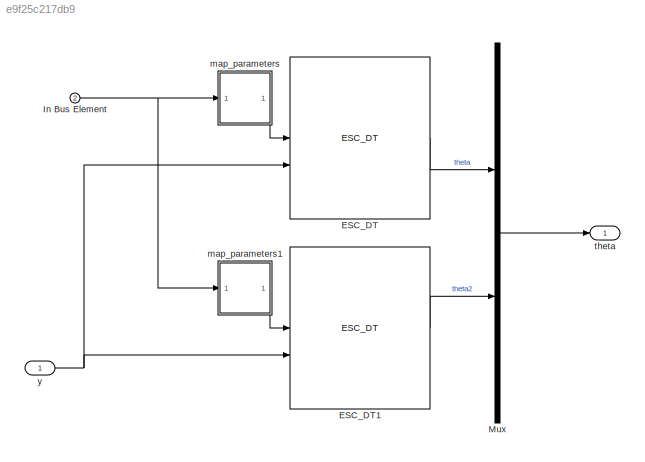
MODEL slx_e9f25c217db9
KIND model
BLOCK [Reference] ESC_DT  REF=escontroller_lib/ESC_DT  (lib defined in slx_8b1712f6363e)
  SourceBlock = escontroller_lib/ESC_DT
BLOCK [Reference] ESC_DT1  REF=escontroller_lib/ESC_DT  (lib defined in slx_8b1712f6363e)
  SourceBlock = escontroller_lib/ESC_DT
BLOCK [Inport] In Bus Element
  Port = 2
BLOCK [Mux] Mux
  DisplayOption = bar
  Inputs = 2
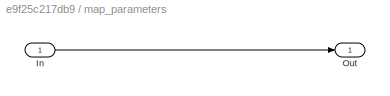
BLOCK [SubSystem] map_parameters
BLOCK [Inport] map_parameters/In
BLOCK [Outport] map_parameters/Out
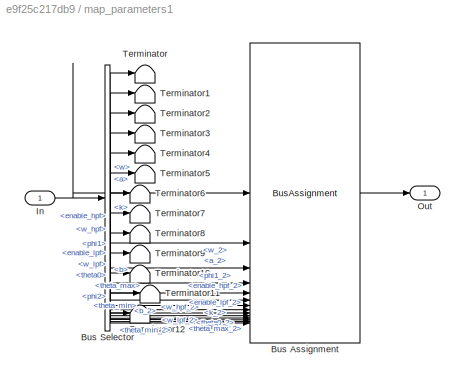
BLOCK [SubSystem] map_parameters1
BLOCK [BusAssignment] map_parameters1/Bus Assignment
  AssignedSignals = w,a,phi1,enable_hpf,w_hpf,k,enable_lpf,w_lpf,theta0,b,phi2,theta_max,theta_min
BLOCK [BusSelector] map_parameters1/Bus Selector
  OutputSignals = w,w_2,a,a_2,phi1,phi1_2,enable_hpf,enable_hpf_2,w_hpf,w_hpf_2,k,k_2,enable_lpf,enable_lpf_2,w_lpf,w_lpf_2,theta0,theta0_2,b,b_2,phi2,phi2_2,theta_max,theta_max_2,theta_min,theta_min_2
BLOCK [Inport] map_parameters1/In
BLOCK [Outport] map_parameters1/Out
BLOCK [Terminator] map_parameters1/Terminator
BLOCK [Terminator] map_parameters1/Terminator1
BLOCK [Terminator] map_parameters1/Terminator10
BLOCK [Terminator] map_parameters1/Terminator11
BLOCK [Terminator] map_parameters1/Terminator12
BLOCK [Terminator] map_parameters1/Terminator2
BLOCK [Terminator] map_parameters1/Terminator3
BLOCK [Terminator] map_parameters1/Terminator4
BLOCK [Terminator] map_parameters1/Terminator5
BLOCK [Terminator] map_parameters1/Terminator6
BLOCK [Terminator] map_parameters1/Terminator7
BLOCK [Terminator] map_parameters1/Terminator8
BLOCK [Terminator] map_parameters1/Terminator9
BLOCK [Outport] theta
BLOCK [Inport] y
  NameLocation = top
LINE ESC_DT1:1 -> Mux:2
LINE ESC_DT:1 -> Mux:1
NET In Bus Element:1 -> map_parameters1:1, map_parameters:1
LINE Mux:1 -> theta:1
LINE map_parameters/In:1 -> map_parameters/Out:1
LINE map_parameters1/Bus Assignment:1 -> map_parameters1/Out:1
LINE map_parameters1/Bus Selector:1 -> map_parameters1/Terminator:1
LINE map_parameters1/Bus Selector:10 -> map_parameters1/Bus Assignment:6
LINE map_parameters1/Bus Selector:11 -> map_parameters1/Terminator5:1
LINE map_parameters1/Bus Selector:12 -> map_parameters1/Bus Assignment:7
LINE map_parameters1/Bus Selector:13 -> map_parameters1/Terminator6:1
LINE map_parameters1/Bus Selector:14 -> map_parameters1/Bus Assignment:8
LINE map_parameters1/Bus Selector:15 -> map_parameters1/Terminator7:1
LINE map_parameters1/Bus Selector:16 -> map_parameters1/Bus Assignment:9
LINE map_parameters1/Bus Selector:17 -> map_parameters1/Terminator8:1
LINE map_parameters1/Bus Selector:18 -> map_parameters1/Bus Assignment:10
LINE map_parameters1/Bus Selector:19 -> map_parameters1/Terminator9:1
LINE map_parameters1/Bus Selector:2 -> map_parameters1/Bus Assignment:2
LINE map_parameters1/Bus Selector:20 -> map_parameters1/Bus Assignment:11
LINE map_parameters1/Bus Selector:21 -> map_parameters1/Terminator10:1
LINE map_parameters1/Bus Selector:22 -> map_parameters1/Bus Assignment:12
LINE map_parameters1/Bus Selector:23 -> map_parameters1/Terminator11:1
LINE map_parameters1/Bus Selector:24 -> map_parameters1/Bus Assignment:13
LINE map_parameters1/Bus Selector:25 -> map_parameters1/Terminator12:1
LINE map_parameters1/Bus Selector:26 -> map_parameters1/Bus Assignment:14
LINE map_parameters1/Bus Selector:3 -> map_parameters1/Terminator1:1
LINE map_parameters1/Bus Selector:4 -> map_parameters1/Bus Assignment:3
LINE map_parameters1/Bus Selector:5 -> map_parameters1/Terminator2:1
LINE map_parameters1/Bus Selector:6 -> map_parameters1/Bus Assignment:4
LINE map_parameters1/Bus Selector:7 -> map_parameters1/Terminator3:1
LINE map_parameters1/Bus Selector:8 -> map_parameters1/Bus Assignment:5
LINE map_parameters1/Bus Selector:9 -> map_parameters1/Terminator4:1
NET map_parameters1/In:1 -> map_parameters1/Bus Assignment:1, map_parameters1/Bus Selector:1
LINE map_parameters1:1 -> ESC_DT1:1
LINE map_parameters:1 -> ESC_DT:1
NET y:1 -> ESC_DT1:2, ESC_DT:2
note: NET lines group one-source signal fan-out (src -> all destinations, sorted); 1:1 wires keep LINE
CHART Test Assessment states=4 transitions=14
  STATE_LABEL 'step_1'
  STATE_LABEL "Enabled\n\nassert(false, 'Error at %d', t);\ntheta2; % unused"
  STATE_LABEL "Activated\n\nassert(false, 'Error at %d', t);"
  STATE_LABEL 'Default'
  STATE_LABEL '[theta1 <=-10000\n]'
  STATE_LABEL '[~in(step_1.Enabled)]'
  STATE_LABEL '[theta1>=10000\n]'
  STATE_LABEL '[~in(step_1.Activated)]'
  STATE_LABEL '[~in(step_1.Default)]'
  STATE_LABEL "Enabled\n\nassert(false, 'Error at %d', t);\ntheta2; % unused"
  STATE_LABEL "Activated\n\nassert(false, 'Error at %d', t);"
  STATE_LABEL 'Default'
